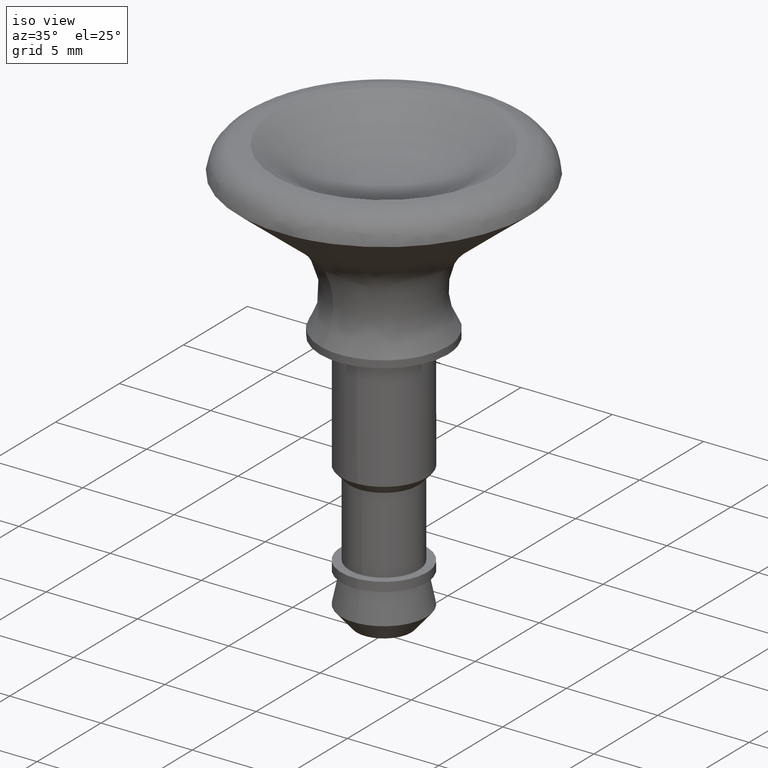
[diagram: clean part render]
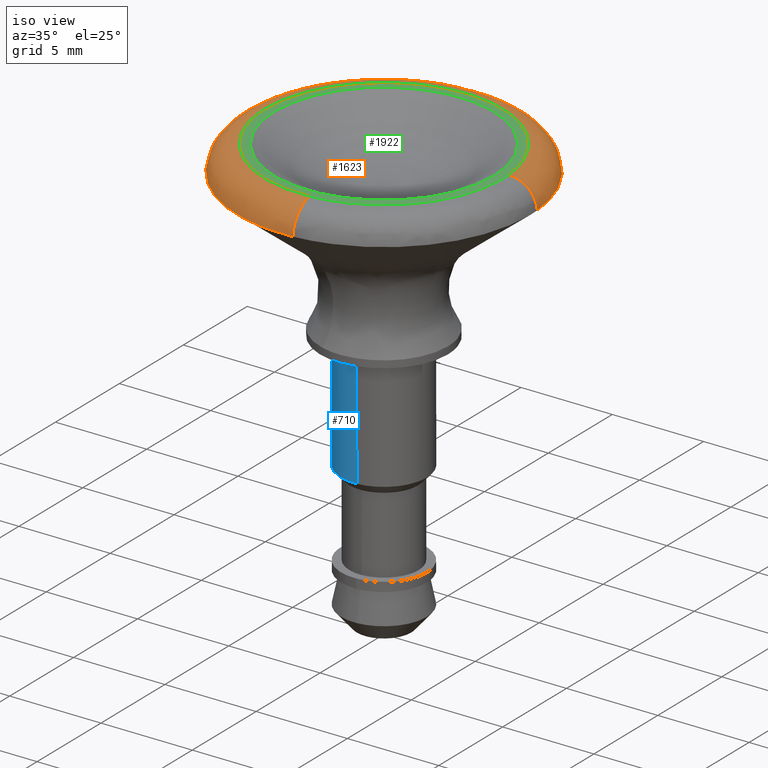
[diagram: same view with three faces highlighted in distinct colors, each labeled with its STEP entity id]
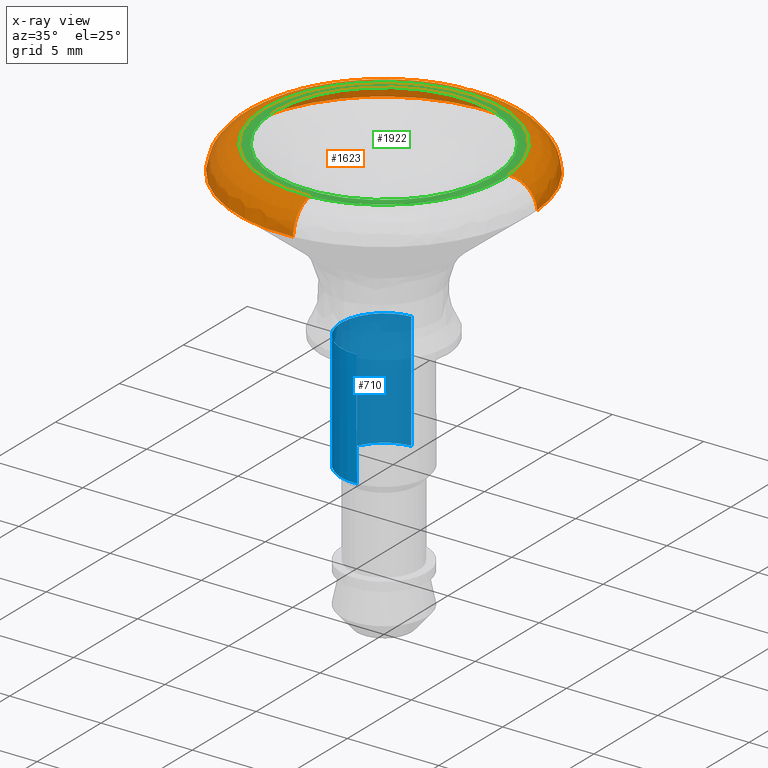
[diagram: x-ray of the same camera — body ghosted, the three highlighted faces saturated]
A machine part, iso view with three faces highlighted in distinct colors.
The next image is the same camera in x-ray (body ghosted, the three faces saturated) — at least one of them is partly hidden behind the body in this view.
Their STEP definitions:

[orange] entity #1623 — the highlighted face is a freeform B-spline surface patch.
#70=CARTESIAN_POINT('',(-7.999791268970019,0.0,8.102537222004731));
#71=VERTEX_POINT('',#70);
#72=CARTESIAN_POINT('',(-4.451274238523400,6.647015721401232,8.102537222005143));
#73=VERTEX_POINT('',#72);
#74=CARTESIAN_POINT('',(-7.999791268970019,0.0,8.102537222004731));
#75=CARTESIAN_POINT('',(-7.999791268970020,4.270697821056486,8.102537222004731));
#76=CARTESIAN_POINT('',(-4.451274238523400,6.647015721401232,8.102537222005143));
#84=(BOUNDED_CURVE()B_SPLINE_CURVE(2,(#74,#75,#76),.UNSPECIFIED.,.F.,.U.)B_SPLINE_CURVE_WITH_KNOTS((3,3),(0.0,0.154565963839558),.UNSPECIFIED.)CURVE()GEOMETRIC_REPRESENTATION_ITEM()RATIONAL_B_SPLINE_CURVE((1.0,0.818914709328112,0.861746398575160))REPRESENTATION_ITEM(''));
#85=EDGE_CURVE('',#71,#73,#84,.T.);
#171=CARTESIAN_POINT('',(0.766746014196790,7.962961816864413,8.102537222006742));
#172=VERTEX_POINT('',#171);
#178=CARTESIAN_POINT('',(7.977063064077472,0.602598721189316,8.102537222042049));
#179=VERTEX_POINT('',#178);
#180=CARTESIAN_POINT('',(0.766746014196790,7.962961816864413,8.102537222006742));
#181=CARTESIAN_POINT('',(7.469807547715702,7.317530401759592,8.102537222008174));
#182=CARTESIAN_POINT('',(7.977063064077472,0.602598721189316,8.102537222042049));
#190=(BOUNDED_CURVE()B_SPLINE_CURVE(2,(#180,#181,#182),.UNSPECIFIED.,.F.,.U.)B_SPLINE_CURVE_WITH_KNOTS((3,3),(0.266651095235304,0.486870159262014),.UNSPECIFIED.)CURVE()GEOMETRIC_REPRESENTATION_ITEM()RATIONAL_B_SPLINE_CURVE((0.963582689691243,0.739948225498995,0.970850634526517))REPRESENTATION_ITEM(''));
#191=EDGE_CURVE('',#172,#179,#190,.T.);
#208=CARTESIAN_POINT('',(0.602598721190914,-7.977063064077461,8.102537222040441));
#209=VERTEX_POINT('',#208);
#223=CARTESIAN_POINT('',(0.602598721190914,-7.977063064077461,8.102537222040441));
#224=CARTESIAN_POINT('',(0.301727980243263,-7.999791268970018,8.102537222004731));
#225=CARTESIAN_POINT('',(0.0,-7.999791268970019,8.102537222004731));
#226=CARTESIAN_POINT('',(-7.999791268970019,-7.999791268970019,8.102537222004731));
#227=CARTESIAN_POINT('',(-7.999791268970019,0.0,8.102537222004731));
#235=(BOUNDED_CURVE()B_SPLINE_CURVE(2,(#223,#224,#225,#226,#227),.UNSPECIFIED.,.F.,.U.)B_SPLINE_CURVE_WITH_KNOTS((3,2,3),(0.736870159261945,0.750000000000000,1.0),.UNSPECIFIED.)CURVE()GEOMETRIC_REPRESENTATION_ITEM()RATIONAL_B_SPLINE_CURVE((0.970850634526374,0.984617434734893,1.0,0.707106781186548,1.0))REPRESENTATION_ITEM(''));
#236=EDGE_CURVE('',#209,#71,#235,.T.);
#255=CARTESIAN_POINT('',(-4.451274238523400,6.647015721401232,8.102537222005143));
#256=CARTESIAN_POINT('',(-2.431196424765133,7.999791268970019,8.102537222004731));
#257=CARTESIAN_POINT('',(0.0,7.999791268970019,8.102537222004731));
#258=CARTESIAN_POINT('',(0.384257529828700,7.999791268970019,8.102537222004731));
#259=CARTESIAN_POINT('',(0.766746014196790,7.962961816864413,8.102537222006742));
#267=(BOUNDED_CURVE()B_SPLINE_CURVE(2,(#255,#256,#257,#258,#259),.UNSPECIFIED.,.F.,.U.)B_SPLINE_CURVE_WITH_KNOTS((3,2,3),(0.154565963839558,0.250000000000000,0.266651095235305),.UNSPECIFIED.)CURVE()GEOMETRIC_REPRESENTATION_ITEM()RATIONAL_B_SPLINE_CURVE((0.861746398575160,0.888192071858435,1.0,0.980492028479049,0.963582689691243))REPRESENTATION_ITEM(''));
#268=EDGE_CURVE('',#73,#172,#267,.T.);
#1526=CARTESIAN_POINT('',(0.482288239524336,-6.384420621081302,9.496616764884941));
#1527=CARTESIAN_POINT('',(-5.902132381556966,-6.866708860605638,9.496616764884939));
#1528=CARTESIAN_POINT('',(-6.384420621081302,-0.482288239524336,9.496616764884941));
#1529=CARTESIAN_POINT('',(-6.866708860605638,5.902132381556966,9.496616764884939));
#1530=CARTESIAN_POINT('',(-0.482288239524336,6.384420621081302,9.496616764884941));
#1531=CARTESIAN_POINT('',(5.902132381556966,6.866708860605639,9.496616764884939));
#1532=CARTESIAN_POINT('',(6.384420621081302,0.482288239524337,9.496616764884941));
#1533=CARTESIAN_POINT('',(0.602732369115960,-7.978832264648148,9.604190729261497));
#1534=CARTESIAN_POINT('',(-7.376099895532184,-8.581564633764106,9.604190729261495));
#1535=CARTESIAN_POINT('',(-7.978832264648148,-0.602732369115961,9.604190729261497));
#1536=CARTESIAN_POINT('',(-8.581564633764106,7.376099895532184,9.604190729261495));
#1537=CARTESIAN_POINT('',(-0.602732369115961,7.978832264648148,9.604190729261497));
#1538=CARTESIAN_POINT('',(7.376099895532184,8.581564633764106,9.604190729261495));
#1539=CARTESIAN_POINT('',(7.978832264648148,0.602732369115961,9.604190729261497));
#1540=CARTESIAN_POINT('',(0.602862956569555,-7.980560951278386,8.001622655856890));
#1541=CARTESIAN_POINT('',(-7.377697994708830,-8.583423907847941,8.001622655856890));
#1542=CARTESIAN_POINT('',(-7.980560951278386,-0.602862956569556,8.001622655856890));
#1543=CARTESIAN_POINT('',(-8.583423907847941,7.377697994708829,8.001622655856890));
#1544=CARTESIAN_POINT('',(-0.602862956569556,7.980560951278386,8.001622655856890));
#1545=CARTESIAN_POINT('',(7.377697994708829,8.583423907847941,8.001622655856890));
#1546=CARTESIAN_POINT('',(7.980560951278386,0.602862956569557,8.001622655856890));
#1554=(BOUNDED_SURFACE()B_SPLINE_SURFACE(2,2,((#1526,#1533,#1540),(#1527,#1534,#1541),(#1528,#1535,#1542),(#1529,#1536,#1543),(#1530,#1537,#1544),(#1531,#1538,#1545),(#1532,#1539,#1546)),.UNSPECIFIED.,.F.,.F.,.U.)B_SPLINE_SURFACE_WITH_KNOTS((3,2,2,3),(3,3),(0.0,13.260300160789541,26.520600321579089,39.780900482368637),(0.0,2.602243603861898),.UNSPECIFIED.)GEOMETRIC_REPRESENTATION_ITEM()RATIONAL_B_SPLINE_SURFACE(((0.916898868688607,0.625832337538897,0.914743518768376),(0.648345407711988,0.442530289759583,0.646821345167563),(0.916898868688607,0.625832337538897,0.914743518768376),(0.648345407711988,0.442530289759583,0.646821345167563),(0.916898868688607,0.625832337538897,0.914743518768376),(0.648345407711988,0.442530289759583,0.646821345167563),(0.916898868688607,0.625832337538897,0.914743518768376)))REPRESENTATION_ITEM('')SURFACE());
#1555=ORIENTED_EDGE('',*,*,#236,.F.);
#1556=CARTESIAN_POINT('',(0.489872814559552,-6.484823476973960,9.499999999999799));
#1557=VERTEX_POINT('',#1556);
#1558=CARTESIAN_POINT('',(0.489872814559552,-6.484823476973961,9.499999999999799));
#1559=CARTESIAN_POINT('',(0.595386032973580,-7.881583159003224,9.499999998282839));
#1560=CARTESIAN_POINT('',(0.602598721190914,-7.977063064077461,8.102537222040441));
#1568=(BOUNDED_CURVE()B_SPLINE_CURVE(2,(#1558,#1559,#1560),.UNSPECIFIED.,.F.,.U.)B_SPLINE_CURVE_WITH_KNOTS((3,3),(-1.726123027369673,-0.279788980790510),.UNSPECIFIED.)CURVE()GEOMETRIC_REPRESENTATION_ITEM()RATIONAL_B_SPLINE_CURVE((0.891658472655150,0.650974867518114,0.889698855091792))REPRESENTATION_ITEM(''));
#1569=EDGE_CURVE('',#1557,#209,#1568,.T.);
#1570=ORIENTED_EDGE('',*,*,#1569,.F.);
#1571=CARTESIAN_POINT('',(-6.503300000000000,0.0,9.499999999999801));
#1572=VERTEX_POINT('',#1571);
#1573=CARTESIAN_POINT('',(0.489872814559552,-6.484823476973960,9.499999999999799));
#1574=CARTESIAN_POINT('',(0.245284846652638,-6.503299999999999,9.499999999999801));
#1575=CARTESIAN_POINT('',(0.0,-6.503300000000000,9.499999999999801));
#1576=CARTESIAN_POINT('',(-6.503300000000000,-6.503300000000000,9.499999999999801));
#1577=CARTESIAN_POINT('',(-6.503300000000000,0.0,9.499999999999801));
#1585=(BOUNDED_CURVE()B_SPLINE_CURVE(2,(#1573,#1574,#1575,#1576,#1577),.UNSPECIFIED.,.F.,.U.)B_SPLINE_CURVE_WITH_KNOTS((3,2,3),(0.736870159257028,0.750000000000000,1.0),.UNSPECIFIED.)CURVE()GEOMETRIC_REPRESENTATION_ITEM()RATIONAL_B_SPLINE_CURVE((0.970850634516061,0.984617434729131,1.0,0.707106781186547,1.0))REPRESENTATION_ITEM(''));
#1586=EDGE_CURVE('',#1557,#1572,#1585,.T.);
#1587=ORIENTED_EDGE('',*,*,#1586,.T.);
#1588=CARTESIAN_POINT('',(6.484823477051294,0.489872814576206,9.499999999999801));
#1589=VERTEX_POINT('',#1588);
#1590=CARTESIAN_POINT('',(-6.503300000000000,0.0,9.499999999999801));
#1591=CARTESIAN_POINT('',(-6.503300000000000,6.503300000000000,9.499999999999801));
#1592=CARTESIAN_POINT('',(0.0,6.503300000000000,9.499999999999801));
#1593=CARTESIAN_POINT('',(6.030560609579506,6.503300000000000,9.499999999999803));
#1594=CARTESIAN_POINT('',(6.484823477051294,0.489872814576206,9.499999999999801));
#1602=(BOUNDED_CURVE()B_SPLINE_CURVE(2,(#1590,#1591,#1592,#1593,#1594),.UNSPECIFIED.,.F.,.U.)B_SPLINE_CURVE_WITH_KNOTS((3,2,3),(0.0,0.250000000000000,0.486870159256458),.UNSPECIFIED.)CURVE()GEOMETRIC_REPRESENTATION_ITEM()RATIONAL_B_SPLINE_CURVE((1.0,0.707106781186547,1.0,0.722489346458083,0.970850634514868))REPRESENTATION_ITEM(''));
#1603=EDGE_CURVE('',#1572,#1589,#1602,.T.);
#1604=ORIENTED_EDGE('',*,*,#1603,.T.);
#1605=CARTESIAN_POINT('',(6.484823477051294,0.489872814576206,9.499999999999801));
#1606=CARTESIAN_POINT('',(7.881583159010218,0.595386032974108,9.499999998136470));
#1607=CARTESIAN_POINT('',(7.977063064077472,0.602598721189316,8.102537222042049));
#1615=(BOUNDED_CURVE()B_SPLINE_CURVE(2,(#1605,#1606,#1607),.UNSPECIFIED.,.F.,.U.)B_SPLINE_CURVE_WITH_KNOTS((3,3),(-1.726123027258835,-0.279788980792783),.UNSPECIFIED.)CURVE()GEOMETRIC_REPRESENTATION_ITEM()RATIONAL_B_SPLINE_CURVE((0.891658472618261,0.650974867536786,0.889698855091042))REPRESENTATION_ITEM(''));
#1616=EDGE_CURVE('',#1589,#179,#1615,.T.);
#1617=ORIENTED_EDGE('',*,*,#1616,.T.);
#1618=ORIENTED_EDGE('',*,*,#191,.F.);
#1619=ORIENTED_EDGE('',*,*,#268,.F.);
#1620=ORIENTED_EDGE('',*,*,#85,.F.);
#1621=EDGE_LOOP('',(#1555,#1570,#1587,#1604,#1617,#1618,#1619,#1620));
#1622=FACE_OUTER_BOUND('',#1621,.T.);
#1623=ADVANCED_FACE('',(#1622),#1554,.T.);

[blue] entity #710 — the highlighted face is a freeform B-spline surface patch.
#528=CARTESIAN_POINT('',(-0.143464067920206,2.345616776290574,-6.400000000000000));
#529=VERTEX_POINT('',#528);
#547=CARTESIAN_POINT('',(-0.143464067920206,2.345616776290574,2.359224E-016));
#548=VERTEX_POINT('',#547);
#549=CARTESIAN_POINT('',(-0.143464067920206,2.345616776290574,2.359224E-016));
#550=CARTESIAN_POINT('',(-0.143464067920206,2.345616776290574,-6.400000000000000));
#551=QUASI_UNIFORM_CURVE('',1,(#549,#550),.UNSPECIFIED.,.F.,.U.);
#552=EDGE_CURVE('',#548,#529,#551,.T.);
#571=CARTESIAN_POINT('',(0.143464067920206,-2.345616776290574,2.359224E-016));
#572=VERTEX_POINT('',#571);
#586=CARTESIAN_POINT('',(0.163921471478329,-2.344186255284249,-6.399999999993753));
#587=VERTEX_POINT('',#586);
#588=CARTESIAN_POINT('',(0.143464067920206,-2.345616776290574,2.359224E-016));
#589=CARTESIAN_POINT('',(0.163921471478329,-2.344186255284249,-6.399999999993753));
#590=QUASI_UNIFORM_CURVE('',1,(#588,#589),.UNSPECIFIED.,.F.,.U.);
#591=EDGE_CURVE('',#572,#587,#590,.T.);
#624=CARTESIAN_POINT('',(0.196701520779098,-2.342360634183587,0.160000000000000));
#625=CARTESIAN_POINT('',(0.170208509622434,-2.343981016161603,0.160000000000000));
#626=CARTESIAN_POINT('',(-2.202152708384472,-2.489080844198301,0.160000000000000));
#627=CARTESIAN_POINT('',(-2.345616776291387,-0.143464067906914,0.160000000000000));
#628=CARTESIAN_POINT('',(-2.489080844198301,2.202152708384472,0.160000000000000));
#629=CARTESIAN_POINT('',(-0.126875618518010,2.346631369320245,0.160000000000000));
#630=CARTESIAN_POINT('',(-0.110384072411781,2.347640035490437,0.160000000000000));
#631=CARTESIAN_POINT('',(0.196701520779098,-2.342360634183587,-6.564000000000003));
#632=CARTESIAN_POINT('',(0.170208509622434,-2.343981016161603,-6.563999999999999));
#633=CARTESIAN_POINT('',(-2.202152708384472,-2.489080844198301,-6.564000000000002));
#634=CARTESIAN_POINT('',(-2.345616776291387,-0.143464067906914,-6.564000000000001));
#635=CARTESIAN_POINT('',(-2.489080844198301,2.202152708384472,-6.564000000000002));
#636=CARTESIAN_POINT('',(-0.126875618518010,2.346631369320245,-6.563999999999998));
#637=CARTESIAN_POINT('',(-0.110384072411781,2.347640035490437,-6.564000000000004));
#645=(BOUNDED_SURFACE()B_SPLINE_SURFACE(2,1,((#624,#631),(#625,#632),(#626,#633),(#627,#634),(#628,#635),(#629,#636),(#630,#637)),.UNSPECIFIED.,.F.,.F.,.U.)B_SPLINE_SURFACE_WITH_KNOTS((3,1,2,1,3),(2,2),(0.0,0.063081148830581,3.956688635137673,7.850296121444766,7.889352320169630),(0.0,6.724000000000003),.UNSPECIFIED.)GEOMETRIC_REPRESENTATION_ITEM()RATIONAL_B_SPLINE_SURFACE(((1.009490448532583,1.009490448532583),(1.004745224266292,1.004745224266292),(0.707106781186548,0.707106781186548),(1.0,1.0),(0.707106781186548,0.707106781186548),(1.002937968400609,1.002937968400609),(1.005875936801217,1.005875936801217)))REPRESENTATION_ITEM('')SURFACE());
#646=CARTESIAN_POINT('',(-2.350000000000000,0.0,-6.400000000000000));
#647=VERTEX_POINT('',#646);
#648=CARTESIAN_POINT('',(-2.350000000000000,0.0,-6.400000000000000));
#649=CARTESIAN_POINT('',(-2.350000000000001,2.210659257203282,-6.400000000000000));
#650=CARTESIAN_POINT('',(-0.143464067920206,2.345616776290574,-6.400000000000000));
#658=(BOUNDED_CURVE()B_SPLINE_CURVE(2,(#648,#649,#650),.UNSPECIFIED.,.F.,.U.)B_SPLINE_CURVE_WITH_KNOTS((3,3),(0.0,0.239332962240013),.UNSPECIFIED.)CURVE()GEOMETRIC_REPRESENTATION_ITEM()RATIONAL_B_SPLINE_CURVE((1.0,0.719603993285457,0.976072041669011))REPRESENTATION_ITEM(''));
#659=EDGE_CURVE('',#647,#529,#658,.T.);
#660=ORIENTED_EDGE('',*,*,#659,.F.);
#661=CARTESIAN_POINT('',(0.163921471478329,-2.344186255284249,-6.399999999993753));
#662=CARTESIAN_POINT('',(0.082057668093643,-2.349912190560494,-6.399999999993853));
#663=CARTESIAN_POINT('',(-0.000006031248859,-2.349913749123731,-6.399999999993962));
#664=CARTESIAN_POINT('',(-2.350002910316504,-2.349958380535350,-6.399999999997088));
#665=CARTESIAN_POINT('',(-2.350000000000000,0.0,-6.400000000000000));
#673=(BOUNDED_CURVE()B_SPLINE_CURVE(2,(#661,#662,#663,#664,#665),.UNSPECIFIED.,.F.,.U.)B_SPLINE_CURVE_WITH_KNOTS((3,2,3),(0.737829682993713,0.750000000000000,1.0),.UNSPECIFIED.)CURVE()GEOMETRIC_REPRESENTATION_ITEM()RATIONAL_B_SPLINE_CURVE((0.972871408702143,0.985741586712194,1.0,0.707106781186547,1.0))REPRESENTATION_ITEM(''));
#674=EDGE_CURVE('',#587,#647,#673,.T.);
#675=ORIENTED_EDGE('',*,*,#674,.F.);
#676=ORIENTED_EDGE('',*,*,#591,.F.);
#677=CARTESIAN_POINT('',(-2.350000000000000,0.0,0.0));
#678=VERTEX_POINT('',#677);
#679=CARTESIAN_POINT('',(0.143464067920206,-2.345616776290574,2.359224E-016));
#680=CARTESIAN_POINT('',(0.071798993765013,-2.350000000000000,0.0));
#681=CARTESIAN_POINT('',(0.0,-2.350000000000000,0.0));
#682=CARTESIAN_POINT('',(-2.350000000000001,-2.350000000000001,0.0));
#683=CARTESIAN_POINT('',(-2.350000000000000,0.0,0.0));
#691=(BOUNDED_CURVE()B_SPLINE_CURVE(2,(#679,#680,#681,#682,#683),.UNSPECIFIED.,.F.,.U.)B_SPLINE_CURVE_WITH_KNOTS((3,2,3),(0.739332962240013,0.750000000000000,1.0),.UNSPECIFIED.)CURVE()GEOMETRIC_REPRESENTATION_ITEM()RATIONAL_B_SPLINE_CURVE((0.976072041669011,0.987502787901091,1.0,0.707106781186547,1.0))REPRESENTATION_ITEM(''));
#692=EDGE_CURVE('',#572,#678,#691,.T.);
#693=ORIENTED_EDGE('',*,*,#692,.T.);
#694=CARTESIAN_POINT('',(-2.350000000000000,0.0,0.0));
#695=CARTESIAN_POINT('',(-2.350000000000001,2.210659257203282,0.0));
#696=CARTESIAN_POINT('',(-0.143464067920206,2.345616776290574,2.359224E-016));
#704=(BOUNDED_CURVE()B_SPLINE_CURVE(2,(#694,#695,#696),.UNSPECIFIED.,.F.,.U.)B_SPLINE_CURVE_WITH_KNOTS((3,3),(0.0,0.239332962240013),.UNSPECIFIED.)CURVE()GEOMETRIC_REPRESENTATION_ITEM()RATIONAL_B_SPLINE_CURVE((1.0,0.719603993285457,0.976072041669011))REPRESENTATION_ITEM(''));
#705=EDGE_CURVE('',#678,#548,#704,.T.);
#706=ORIENTED_EDGE('',*,*,#705,.T.);
#707=ORIENTED_EDGE('',*,*,#552,.T.);
#708=EDGE_LOOP('',(#660,#675,#676,#693,#706,#707));
#709=FACE_OUTER_BOUND('',#708,.T.);
#710=ADVANCED_FACE('',(#709),#645,.T.);

[green] entity #1922 — the highlighted face is a freeform B-spline surface patch.
#1556=CARTESIAN_POINT('',(0.489872814559552,-6.484823476973960,9.499999999999799));
#1557=VERTEX_POINT('',#1556);
#1571=CARTESIAN_POINT('',(-6.503300000000000,0.0,9.499999999999801));
#1572=VERTEX_POINT('',#1571);
#1573=CARTESIAN_POINT('',(0.489872814559552,-6.484823476973960,9.499999999999799));
#1574=CARTESIAN_POINT('',(0.245284846652638,-6.503299999999999,9.499999999999801));
#1575=CARTESIAN_POINT('',(0.0,-6.503300000000000,9.499999999999801));
#1576=CARTESIAN_POINT('',(-6.503300000000000,-6.503300000000000,9.499999999999801));
#1577=CARTESIAN_POINT('',(-6.503300000000000,0.0,9.499999999999801));
#1585=(BOUNDED_CURVE()B_SPLINE_CURVE(2,(#1573,#1574,#1575,#1576,#1577),.UNSPECIFIED.,.F.,.U.)B_SPLINE_CURVE_WITH_KNOTS((3,2,3),(0.736870159257028,0.750000000000000,1.0),.UNSPECIFIED.)CURVE()GEOMETRIC_REPRESENTATION_ITEM()RATIONAL_B_SPLINE_CURVE((0.970850634516061,0.984617434729131,1.0,0.707106781186547,1.0))REPRESENTATION_ITEM(''));
#1586=EDGE_CURVE('',#1557,#1572,#1585,.T.);
#1588=CARTESIAN_POINT('',(6.484823477051294,0.489872814576206,9.499999999999801));
#1589=VERTEX_POINT('',#1588);
#1590=CARTESIAN_POINT('',(-6.503300000000000,0.0,9.499999999999801));
#1591=CARTESIAN_POINT('',(-6.503300000000000,6.503300000000000,9.499999999999801));
#1592=CARTESIAN_POINT('',(0.0,6.503300000000000,9.499999999999801));
#1593=CARTESIAN_POINT('',(6.030560609579506,6.503300000000000,9.499999999999803));
#1594=CARTESIAN_POINT('',(6.484823477051294,0.489872814576206,9.499999999999801));
#1602=(BOUNDED_CURVE()B_SPLINE_CURVE(2,(#1590,#1591,#1592,#1593,#1594),.UNSPECIFIED.,.F.,.U.)B_SPLINE_CURVE_WITH_KNOTS((3,2,3),(0.0,0.250000000000000,0.486870159256458),.UNSPECIFIED.)CURVE()GEOMETRIC_REPRESENTATION_ITEM()RATIONAL_B_SPLINE_CURVE((1.0,0.707106781186547,1.0,0.722489346458083,0.970850634514868))REPRESENTATION_ITEM(''));
#1603=EDGE_CURVE('',#1572,#1589,#1602,.T.);
#1644=CARTESIAN_POINT('',(6.503300000000000,0.0,9.499999999999801));
#1645=VERTEX_POINT('',#1644);
#1646=CARTESIAN_POINT('',(6.484823477051295,0.489872814576205,9.499999999999801));
#1647=CARTESIAN_POINT('',(6.503299999999999,0.245284846663434,9.499999999999801));
#1648=CARTESIAN_POINT('',(6.503300000000000,0.0,9.499999999999801));
#1656=(BOUNDED_CURVE()B_SPLINE_CURVE(2,(#1646,#1647,#1648),.UNSPECIFIED.,.F.,.U.)B_SPLINE_CURVE_WITH_KNOTS((3,3),(0.486870159256459,0.500000000000000),.UNSPECIFIED.)CURVE()GEOMETRIC_REPRESENTATION_ITEM()RATIONAL_B_SPLINE_CURVE((0.970850634514868,0.984617434728465,1.0))REPRESENTATION_ITEM(''));
#1657=EDGE_CURVE('',#1589,#1645,#1656,.T.);
#1659=CARTESIAN_POINT('',(6.503300000000000,0.0,9.499999999999801));
#1660=CARTESIAN_POINT('',(6.503300000000001,-6.030560609599567,9.499999999999801));
#1661=CARTESIAN_POINT('',(0.489872814559552,-6.484823476973960,9.499999999999799));
#1669=(BOUNDED_CURVE()B_SPLINE_CURVE(2,(#1659,#1660,#1661),.UNSPECIFIED.,.F.,.U.)B_SPLINE_CURVE_WITH_KNOTS((3,3),(0.500000000000000,0.736870159257028),.UNSPECIFIED.)CURVE()GEOMETRIC_REPRESENTATION_ITEM()RATIONAL_B_SPLINE_CURVE((1.0,0.722489346457416,0.970850634516062))REPRESENTATION_ITEM(''));
#1670=EDGE_CURVE('',#1645,#1557,#1669,.T.);
#1804=CARTESIAN_POINT('',(6.0,0.0,9.500000000000000));
#1805=VERTEX_POINT('',#1804);
#1806=CARTESIAN_POINT('',(-6.0,0.0,9.500000000000000));
#1807=VERTEX_POINT('',#1806);
#1808=CARTESIAN_POINT('',(6.0,0.0,9.500000000000000));
#1809=CARTESIAN_POINT('',(6.0,-6.0,9.500000000000000));
#1810=CARTESIAN_POINT('',(0.0,-6.0,9.500000000000000));
#1811=CARTESIAN_POINT('',(-6.0,-6.0,9.500000000000000));
#1812=CARTESIAN_POINT('',(-6.0,0.0,9.500000000000000));
#1820=(BOUNDED_CURVE()B_SPLINE_CURVE(2,(#1808,#1809,#1810,#1811,#1812),.UNSPECIFIED.,.F.,.U.)B_SPLINE_CURVE_WITH_KNOTS((3,2,3),(0.500000000000000,0.750000000000000,1.0),.UNSPECIFIED.)CURVE()GEOMETRIC_REPRESENTATION_ITEM()RATIONAL_B_SPLINE_CURVE((1.0,0.707106781186548,1.0,0.707106781186548,1.0))REPRESENTATION_ITEM(''));
#1821=EDGE_CURVE('',#1805,#1807,#1820,.T.);
#1823=CARTESIAN_POINT('',(-6.0,0.0,9.500000000000000));
#1824=CARTESIAN_POINT('',(-6.0,6.0,9.500000000000000));
#1825=CARTESIAN_POINT('',(0.0,6.0,9.500000000000000));
#1826=CARTESIAN_POINT('',(6.0,6.0,9.500000000000000));
#1827=CARTESIAN_POINT('',(6.0,0.0,9.500000000000000));
#1835=(BOUNDED_CURVE()B_SPLINE_CURVE(2,(#1823,#1824,#1825,#1826,#1827),.UNSPECIFIED.,.F.,.U.)B_SPLINE_CURVE_WITH_KNOTS((3,2,3),(0.0,0.250000000000000,0.500000000000000),.UNSPECIFIED.)CURVE()GEOMETRIC_REPRESENTATION_ITEM()RATIONAL_B_SPLINE_CURVE((1.0,0.707106781186548,1.0,0.707106781186548,1.0))REPRESENTATION_ITEM(''));
#1836=EDGE_CURVE('',#1807,#1805,#1835,.T.);
#1907=CARTESIAN_POINT('',(-7.152979888983994,-7.151310694427796,9.499999999999901));
#1908=CARTESIAN_POINT('',(7.152980005272060,-7.151310694427796,9.499999999999901));
#1909=CARTESIAN_POINT('',(-7.152979888983994,7.148060415263429,9.499999999999901));
#1910=CARTESIAN_POINT('',(7.152980005272060,7.148060415263429,9.499999999999901));
#1911=B_SPLINE_SURFACE_WITH_KNOTS('',1,1,((#1907,#1909),(#1908,#1910)),.UNSPECIFIED.,.F.,.F.,.U.,(2,2),(2,2),(0.0,14.305959894256050),(0.0,14.299371109691229),.UNSPECIFIED.);
#1912=ORIENTED_EDGE('',*,*,#1586,.F.);
#1913=ORIENTED_EDGE('',*,*,#1670,.F.);
#1914=ORIENTED_EDGE('',*,*,#1657,.F.);
#1915=ORIENTED_EDGE('',*,*,#1603,.F.);
#1916=EDGE_LOOP('',(#1912,#1913,#1914,#1915));
#1917=FACE_OUTER_BOUND('',#1916,.T.);
#1918=ORIENTED_EDGE('',*,*,#1836,.T.);
#1919=ORIENTED_EDGE('',*,*,#1821,.T.);
#1920=EDGE_LOOP('',(#1918,#1919));
#1921=FACE_BOUND('',#1920,.T.);
#1922=ADVANCED_FACE('',(#1917,#1921),#1911,.T.);